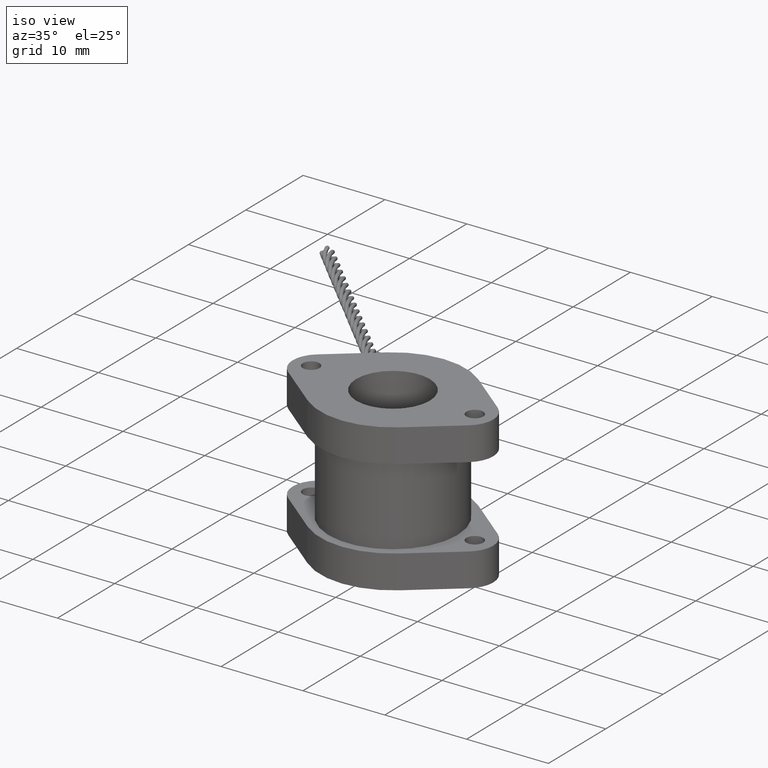
[diagram: clean part render]
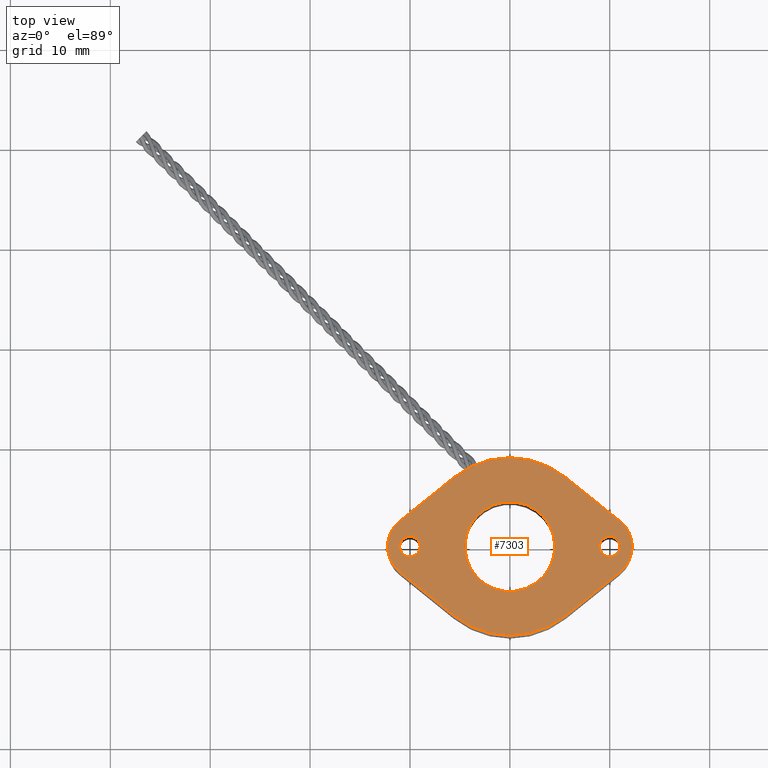
[diagram: tour spotlight — one face highlighted and labeled with its STEP entity id]
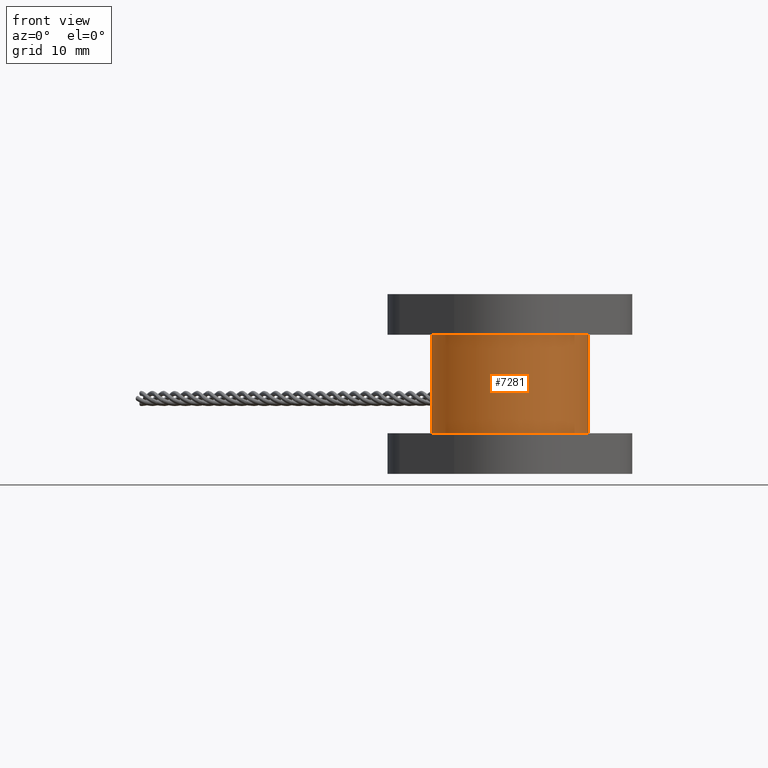
[diagram: tour spotlight — one face highlighted and labeled with its STEP entity id]
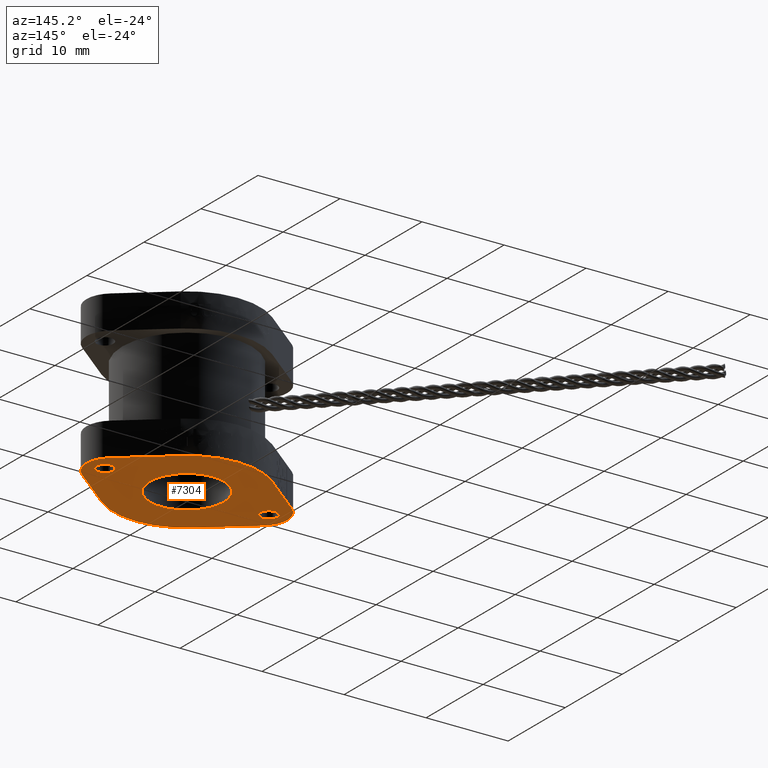
[diagram: tour spotlight — one face highlighted and labeled with its STEP entity id]
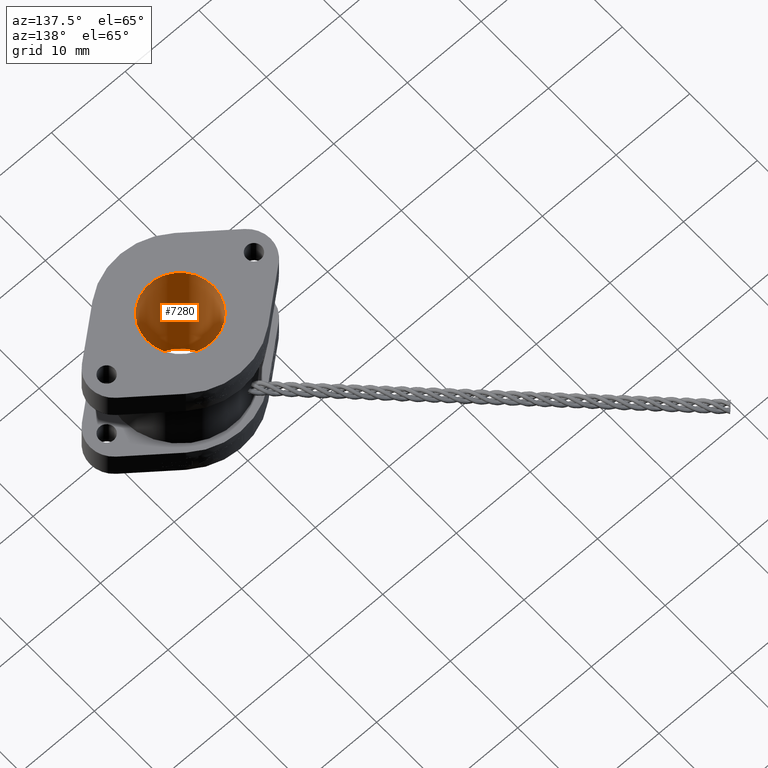
[diagram: tour spotlight — one face highlighted and labeled with its STEP entity id]
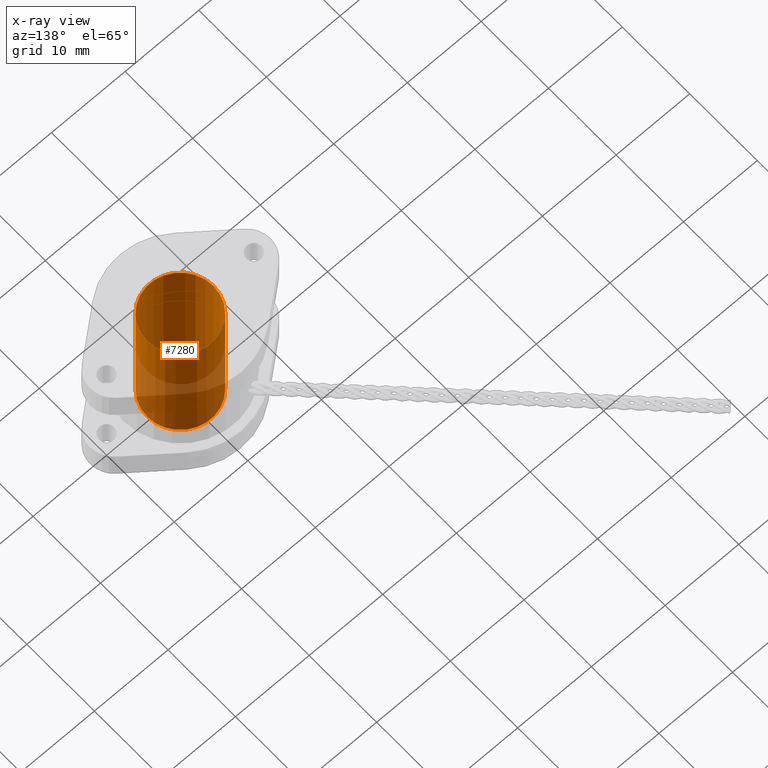
[diagram: x-ray of the same camera — body ghosted, this tour face saturated]
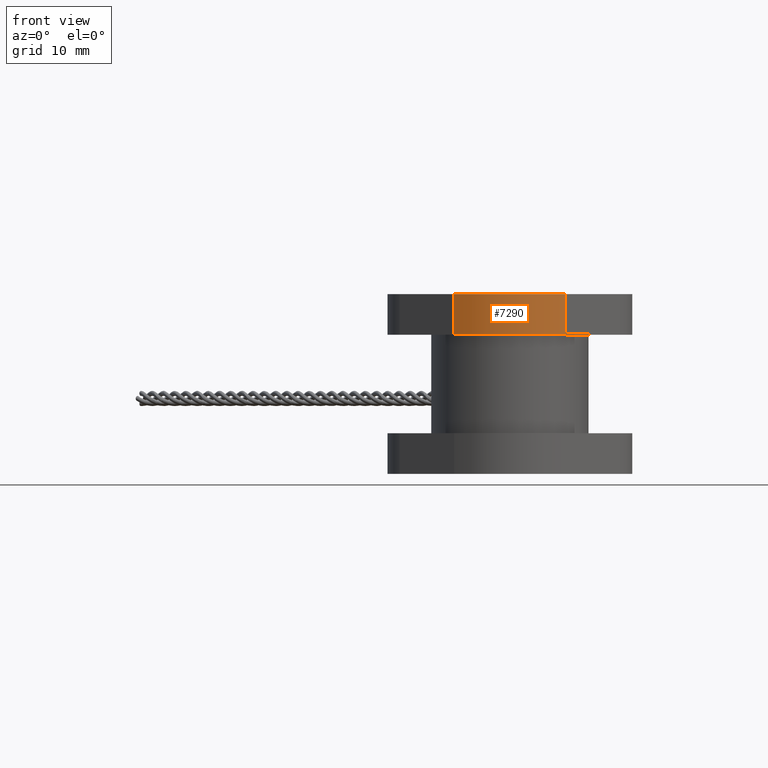
[diagram: tour spotlight — one face highlighted and labeled with its STEP entity id]
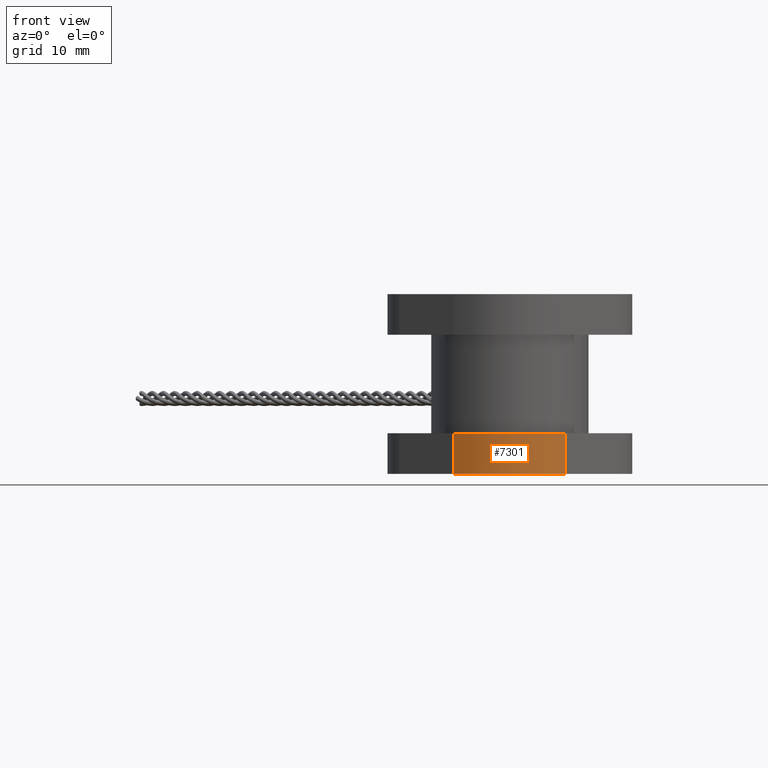
[diagram: tour spotlight — one face highlighted and labeled with its STEP entity id]
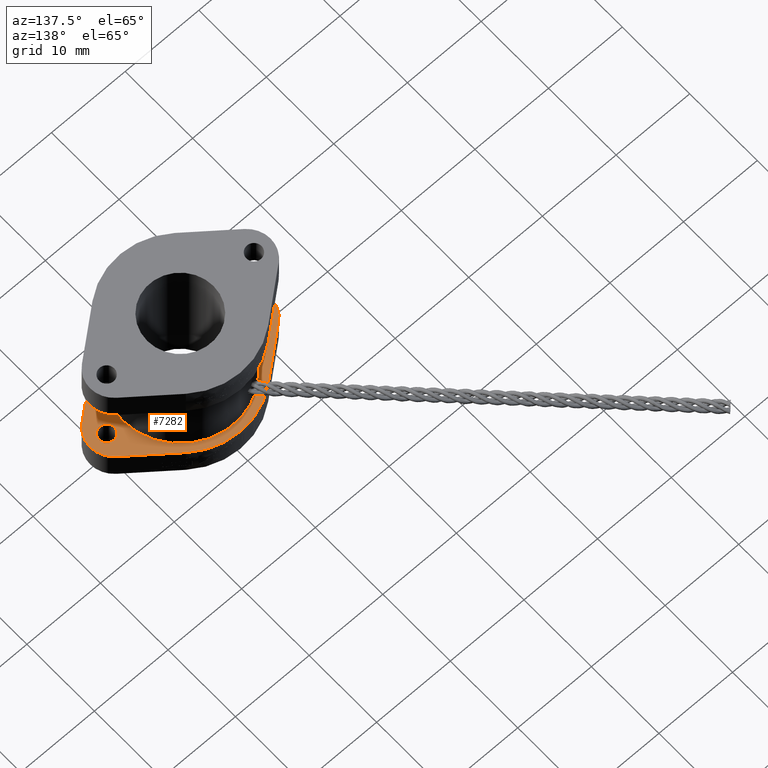
[diagram: tour spotlight — one face highlighted and labeled with its STEP entity id]
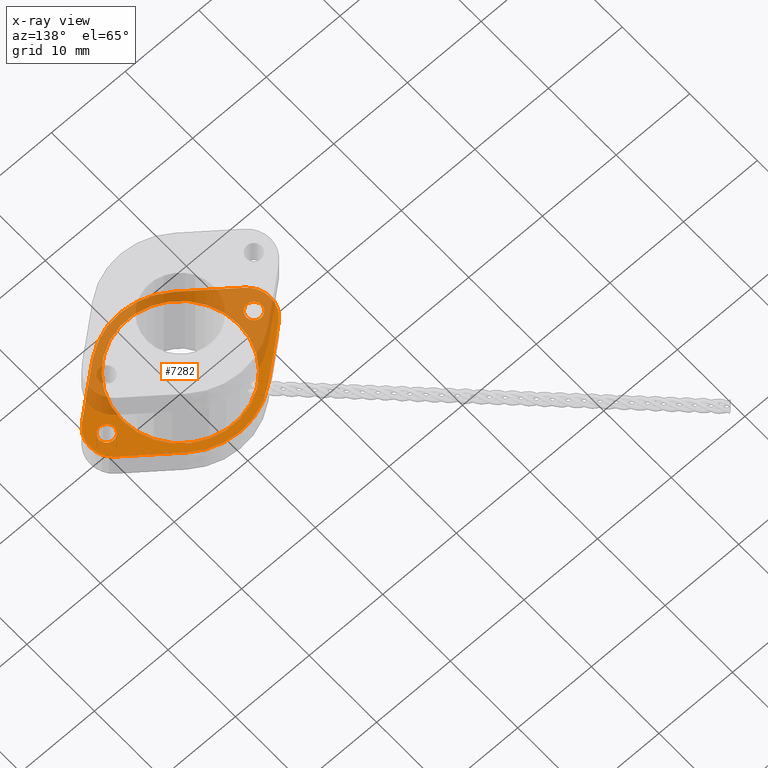
[diagram: x-ray of the same camera — body ghosted, this tour face saturated]
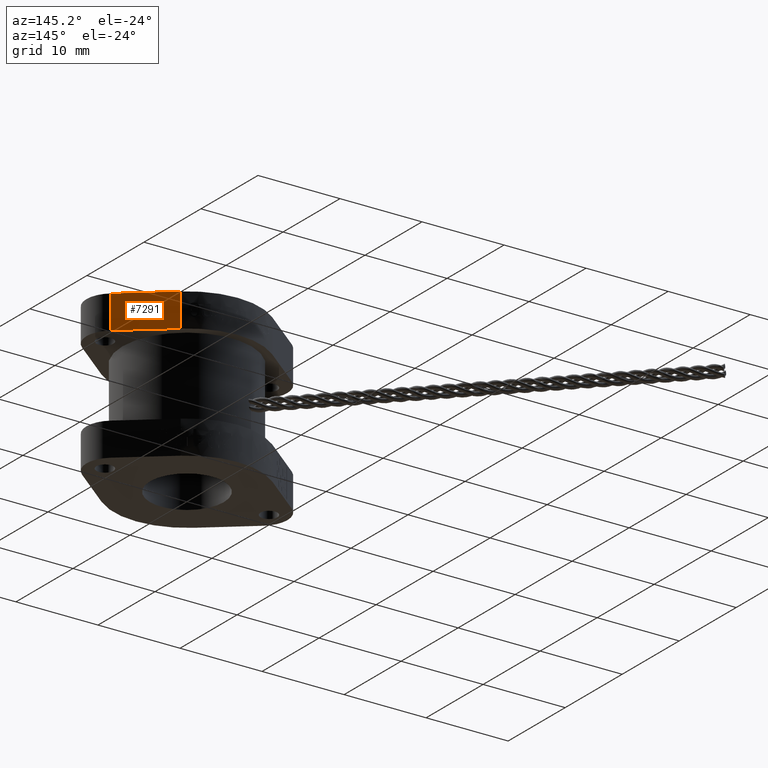
[diagram: tour spotlight — one face highlighted and labeled with its STEP entity id]
A machine part: a face-by-face anatomy tour. The part has 380 B-rep faces; the first image is the clean iso view, then the 8 largest visible faces are spotlighted one at a time (largest first), each with its STEP entity span.

Face 1 — top view, entity #7303. In plain terms, the highlighted planar face has unit normal (0, 0, -1).
Definition (entity closure, byte-faithful):
#72=FACE_BOUND('',#1533,.T.);
#73=FACE_BOUND('',#1534,.T.);
#74=FACE_BOUND('',#1535,.T.);
#738=PLANE('',#7718);
#1114=FACE_OUTER_BOUND('',#1532,.T.);
#1532=EDGE_LOOP('',(#6486,#6487,#6488,#6489,#6490,#6491,#6492,#6493));
#1533=EDGE_LOOP('',(#6494));
#1534=EDGE_LOOP('',(#6495));
#1535=EDGE_LOOP('',(#6496));
#1611=CIRCLE('',#7457,0.350393700787402);
#1672=CIRCLE('',#7672,0.177165354330709);
#1686=CIRCLE('',#7691,0.127952755905512);
#1688=CIRCLE('',#7698,0.350393700787402);
#1689=CIRCLE('',#7703,0.127952755905512);
#1692=CIRCLE('',#7709,0.040354330708661);
#1693=CIRCLE('',#7711,0.040354330708661);
#2231=LINE('',#15818,#2771);
#2235=LINE('',#15830,#2775);
#2237=LINE('',#15839,#2777);
#2242=LINE('',#15848,#2782);
#2771=VECTOR('',#8921,39.3700787401575);
#2775=VECTOR('',#8935,39.3700787401575);
#2777=VECTOR('',#8947,39.3700787401575);
#2782=VECTOR('',#8956,39.3700787401575);
#3022=VERTEX_POINT('',#12225);
#3023=VERTEX_POINT('',#12227);
#3430=VERTEX_POINT('',#15772);
#3449=VERTEX_POINT('',#15816);
#3450=VERTEX_POINT('',#15820);
#3452=VERTEX_POINT('',#15828);
#3453=VERTEX_POINT('',#15834);
#3454=VERTEX_POINT('',#15838);
#3456=VERTEX_POINT('',#15846);
#3459=VERTEX_POINT('',#15858);
#3460=VERTEX_POINT('',#15861);
#3822=EDGE_CURVE('',#3023,#3022,#1611,.T.);
#4431=EDGE_CURVE('',#3430,#3430,#1672,.T.);
#4453=EDGE_CURVE('',#3022,#3449,#2231,.T.);
#4455=EDGE_CURVE('',#3449,#3450,#1686,.T.);
#4459=EDGE_CURVE('',#3450,#3452,#2235,.T.);
#4461=EDGE_CURVE('',#3452,#3453,#1688,.T.);
#4462=EDGE_CURVE('',#3454,#3023,#2237,.T.);
#4467=EDGE_CURVE('',#3453,#3456,#2242,.T.);
#4468=EDGE_CURVE('',#3456,#3454,#1689,.T.);
#4471=EDGE_CURVE('',#3459,#3459,#1692,.T.);
#4472=EDGE_CURVE('',#3460,#3460,#1693,.T.);
#6486=ORIENTED_EDGE('',*,*,#4468,.T.);
#6487=ORIENTED_EDGE('',*,*,#4462,.T.);
#6488=ORIENTED_EDGE('',*,*,#3822,.T.);
#6489=ORIENTED_EDGE('',*,*,#4453,.T.);
#6490=ORIENTED_EDGE('',*,*,#4455,.T.);
#6491=ORIENTED_EDGE('',*,*,#4459,.T.);
#6492=ORIENTED_EDGE('',*,*,#4461,.T.);
#6493=ORIENTED_EDGE('',*,*,#4467,.T.);
#6494=ORIENTED_EDGE('',*,*,#4431,.T.);
#6495=ORIENTED_EDGE('',*,*,#4471,.F.);
#6496=ORIENTED_EDGE('',*,*,#4472,.F.);
#7303=ADVANCED_FACE('',(#1114,#72,#73,#74),#738,.F.);
#7457=AXIS2_PLACEMENT_3D('',#12228,#8083,#8084);
#7672=AXIS2_PLACEMENT_3D('',#15773,#8877,#8878);
#7691=AXIS2_PLACEMENT_3D('',#15822,#8925,#8926);
#7698=AXIS2_PLACEMENT_3D('',#15836,#8943,#8944);
#7703=AXIS2_PLACEMENT_3D('',#15850,#8959,#8960);
#7709=AXIS2_PLACEMENT_3D('',#15859,#8971,#8972);
#7711=AXIS2_PLACEMENT_3D('',#15862,#8975,#8976);
#7718=AXIS2_PLACEMENT_3D('',#15877,#8994,#8995);
#8083=DIRECTION('center_axis',(0.,0.,1.));
#8084=DIRECTION('ref_axis',(1.,0.,0.));
#8877=DIRECTION('center_axis',(0.,0.,-1.));
#8878=DIRECTION('ref_axis',(1.,0.,0.));
#8921=DIRECTION('',(-0.778392614127597,-0.627777777777778,0.));
#8925=DIRECTION('center_axis',(0.,0.,1.));
#8926=DIRECTION('ref_axis',(1.,0.,0.));
#8935=DIRECTION('',(0.778392614127597,-0.627777777777778,0.));
#8943=DIRECTION('center_axis',(0.,0.,1.));
#8944=DIRECTION('ref_axis',(1.,0.,0.));
#8947=DIRECTION('',(-0.778392614127597,0.627777777777778,0.));
#8956=DIRECTION('',(0.778392614127597,0.627777777777779,0.));
#8959=DIRECTION('center_axis',(0.,0.,1.));
#8960=DIRECTION('ref_axis',(-1.,0.,0.));
#8971=DIRECTION('center_axis',(0.,0.,1.));
#8972=DIRECTION('ref_axis',(1.,0.,0.));
#8975=DIRECTION('center_axis',(0.,0.,1.));
#8976=DIRECTION('ref_axis',(1.,0.,0.));
#8994=DIRECTION('center_axis',(0.,0.,-1.));
#8995=DIRECTION('ref_axis',(-1.,0.,0.));
#12225=CARTESIAN_POINT('',(-0.219969378827647,0.272743868729749,0.354330708661417));
#12227=CARTESIAN_POINT('',(0.219969378827647,0.272743868729749,0.354330708661417));
#12228=CARTESIAN_POINT('Origin',(0.,0.,0.354330708661417));
#15772=CARTESIAN_POINT('',(0.177165354330709,0.,0.354330708661417));
#15773=CARTESIAN_POINT('Origin',(0.,0.,0.354330708661417));
#15816=CARTESIAN_POINT('',(-0.434656605424322,0.0995974801541217,0.354330708661417));
#15818=CARTESIAN_POINT('',(-0.434656605424322,0.0995974801541218,0.354330708661417));
#15820=CARTESIAN_POINT('',(-0.434656605424322,-0.0995974801541216,0.354330708661417));
#15822=CARTESIAN_POINT('Origin',(-0.354330708661417,4.90172401428705E-26,
0.354330708661417));
#15828=CARTESIAN_POINT('',(-0.219969378827647,-0.272743868729749,0.354330708661417));
#15830=CARTESIAN_POINT('',(-0.434656605424322,-0.0995974801541216,0.354330708661417));
#15834=CARTESIAN_POINT('',(0.219969378827647,-0.272743868729749,0.354330708661417));
#15836=CARTESIAN_POINT('Origin',(0.,0.,0.354330708661417));
#15838=CARTESIAN_POINT('',(0.434656605424322,0.0995974801541218,0.354330708661417));
#15839=CARTESIAN_POINT('',(0.434656605424322,0.0995974801541218,0.354330708661417));
#15846=CARTESIAN_POINT('',(0.434656605424322,-0.0995974801541214,0.354330708661417));
#15848=CARTESIAN_POINT('',(0.434656605424322,-0.0995974801541214,0.354330708661417));
#15850=CARTESIAN_POINT('Origin',(0.354330708661417,4.90172401428705E-26,
0.354330708661417));
#15858=CARTESIAN_POINT('',(0.434055118110236,0.,0.354330708661417));
#15859=CARTESIAN_POINT('Origin',(0.393700787401575,0.,0.354330708661417));
#15861=CARTESIAN_POINT('',(-0.353346456692914,0.,0.354330708661417));
#15862=CARTESIAN_POINT('Origin',(-0.393700787401575,0.,0.354330708661417));
#15877=CARTESIAN_POINT('Origin',(0.354330708661417,4.90172401428705E-26,
0.354330708661417));

Face 2 — front view, entity #7281. In plain terms, the highlighted cylindrical surface (bore or boss wall) has radius 7.874 mm, axis along (0, 0, 1).
Definition (entity closure, byte-faithful):
#60=FACE_BOUND('',#1499,.T.);
#1092=FACE_OUTER_BOUND('',#1498,.T.);
#1498=EDGE_LOOP('',(#6370));
#1499=EDGE_LOOP('',(#6371));
#1674=CIRCLE('',#7675,0.31);
#1675=CIRCLE('',#7676,0.31);
#3432=VERTEX_POINT('',#15777);
#3433=VERTEX_POINT('',#15779);
#4433=EDGE_CURVE('',#3432,#3432,#1674,.T.);
#4434=EDGE_CURVE('',#3433,#3433,#1675,.T.);
#6370=ORIENTED_EDGE('',*,*,#4433,.F.);
#6371=ORIENTED_EDGE('',*,*,#4434,.T.);
#6557=CYLINDRICAL_SURFACE('',#7674,0.31);
#7281=ADVANCED_FACE('',(#1092,#60),#6557,.T.);
#7674=AXIS2_PLACEMENT_3D('',#15776,#8881,#8882);
#7675=AXIS2_PLACEMENT_3D('',#15778,#8883,#8884);
#7676=AXIS2_PLACEMENT_3D('',#15780,#8885,#8886);
#8881=DIRECTION('center_axis',(0.,0.,1.));
#8882=DIRECTION('ref_axis',(-1.,0.,0.));
#8883=DIRECTION('center_axis',(0.,0.,1.));
#8884=DIRECTION('ref_axis',(1.,0.,0.));
#8885=DIRECTION('center_axis',(0.,0.,1.));
#8886=DIRECTION('ref_axis',(1.,0.,0.));
#15776=CARTESIAN_POINT('Origin',(0.,0.,0.));
#15777=CARTESIAN_POINT('',(-0.31,0.,0.194330708661417));
#15778=CARTESIAN_POINT('Origin',(0.,0.,0.194330708661417));
#15779=CARTESIAN_POINT('',(-0.31,0.,-0.194330708661417));
#15780=CARTESIAN_POINT('Origin',(0.,0.,-0.194330708661417));

Face 3 — auxiliary view, entity #7304. In plain terms, the highlighted planar face has unit normal (0, 0, -1).
Definition (entity closure, byte-faithful):
#75=FACE_BOUND('',#1537,.T.);
#76=FACE_BOUND('',#1538,.T.);
#77=FACE_BOUND('',#1539,.T.);
#739=PLANE('',#7719);
#1115=FACE_OUTER_BOUND('',#1536,.T.);
#1536=EDGE_LOOP('',(#6497,#6498,#6499,#6500,#6501,#6502,#6503,#6504));
#1537=EDGE_LOOP('',(#6505));
#1538=EDGE_LOOP('',(#6506));
#1539=EDGE_LOOP('',(#6507));
#1671=CIRCLE('',#7666,0.350393700787402);
#1673=CIRCLE('',#7673,0.177165354330709);
#1687=CIRCLE('',#7693,0.127952755905512);
#1690=CIRCLE('',#7705,0.040354330708661);
#1691=CIRCLE('',#7707,0.040354330708661);
#1694=CIRCLE('',#7713,0.127952755905512);
#1695=CIRCLE('',#7716,0.350393700787402);
#2002=LINE('',#12563,#2542);
#2240=LINE('',#15844,#2780);
#2244=LINE('',#15869,#2784);
#2247=LINE('',#15876,#2787);
#2542=VECTOR('',#8332,39.3700787401575);
#2780=VECTOR('',#8952,39.3700787401575);
#2784=VECTOR('',#8984,39.3700787401575);
#2787=VECTOR('',#8993,39.3700787401575);
#3125=VERTEX_POINT('',#12560);
#3126=VERTEX_POINT('',#12562);
#3429=VERTEX_POINT('',#15763);
#3431=VERTEX_POINT('',#15774);
#3451=VERTEX_POINT('',#15824);
#3455=VERTEX_POINT('',#15842);
#3457=VERTEX_POINT('',#15852);
#3458=VERTEX_POINT('',#15855);
#3461=VERTEX_POINT('',#15864);
#3462=VERTEX_POINT('',#15868);
#3463=VERTEX_POINT('',#15872);
#3971=EDGE_CURVE('',#3125,#3126,#2002,.T.);
#4429=EDGE_CURVE('',#3429,#3125,#1671,.T.);
#4432=EDGE_CURVE('',#3431,#3431,#1673,.T.);
#4456=EDGE_CURVE('',#3126,#3451,#1687,.T.);
#4465=EDGE_CURVE('',#3455,#3429,#2240,.T.);
#4469=EDGE_CURVE('',#3457,#3457,#1690,.T.);
#4470=EDGE_CURVE('',#3458,#3458,#1691,.T.);
#4474=EDGE_CURVE('',#3461,#3455,#1694,.T.);
#4475=EDGE_CURVE('',#3451,#3462,#2244,.T.);
#4477=EDGE_CURVE('',#3462,#3463,#1695,.T.);
#4479=EDGE_CURVE('',#3463,#3461,#2247,.T.);
#6497=ORIENTED_EDGE('',*,*,#4474,.F.);
#6498=ORIENTED_EDGE('',*,*,#4479,.F.);
#6499=ORIENTED_EDGE('',*,*,#4477,.F.);
#6500=ORIENTED_EDGE('',*,*,#4475,.F.);
#6501=ORIENTED_EDGE('',*,*,#4456,.F.);
#6502=ORIENTED_EDGE('',*,*,#3971,.F.);
#6503=ORIENTED_EDGE('',*,*,#4429,.F.);
#6504=ORIENTED_EDGE('',*,*,#4465,.F.);
#6505=ORIENTED_EDGE('',*,*,#4432,.T.);
#6506=ORIENTED_EDGE('',*,*,#4469,.F.);
#6507=ORIENTED_EDGE('',*,*,#4470,.F.);
#7304=ADVANCED_FACE('',(#1115,#75,#76,#77),#739,.T.);
#7666=AXIS2_PLACEMENT_3D('',#15765,#8864,#8865);
#7673=AXIS2_PLACEMENT_3D('',#15775,#8879,#8880);
#7693=AXIS2_PLACEMENT_3D('',#15825,#8929,#8930);
#7705=AXIS2_PLACEMENT_3D('',#15853,#8963,#8964);
#7707=AXIS2_PLACEMENT_3D('',#15856,#8967,#8968);
#7713=AXIS2_PLACEMENT_3D('',#15866,#8980,#8981);
#7716=AXIS2_PLACEMENT_3D('',#15873,#8988,#8989);
#7719=AXIS2_PLACEMENT_3D('',#15878,#8996,#8997);
#8332=DIRECTION('',(-0.778392614127597,-0.627777777777778,0.));
#8864=DIRECTION('center_axis',(0.,0.,1.));
#8865=DIRECTION('ref_axis',(1.,0.,0.));
#8879=DIRECTION('center_axis',(0.,0.,1.));
#8880=DIRECTION('ref_axis',(1.,0.,0.));
#8929=DIRECTION('center_axis',(0.,0.,1.));
#8930=DIRECTION('ref_axis',(1.,0.,0.));
#8952=DIRECTION('',(-0.778392614127597,0.627777777777778,0.));
#8963=DIRECTION('center_axis',(0.,0.,-1.));
#8964=DIRECTION('ref_axis',(-1.,0.,0.));
#8967=DIRECTION('center_axis',(0.,0.,-1.));
#8968=DIRECTION('ref_axis',(-1.,0.,0.));
#8980=DIRECTION('center_axis',(0.,0.,1.));
#8981=DIRECTION('ref_axis',(-1.,0.,0.));
#8984=DIRECTION('',(0.778392614127597,-0.627777777777778,0.));
#8988=DIRECTION('center_axis',(0.,0.,1.));
#8989=DIRECTION('ref_axis',(1.,0.,0.));
#8993=DIRECTION('',(0.778392614127597,0.627777777777779,0.));
#8996=DIRECTION('center_axis',(0.,0.,-1.));
#8997=DIRECTION('ref_axis',(-1.,0.,0.));
#12560=CARTESIAN_POINT('',(-0.219969378827647,0.272743868729749,-0.354330708661417));
#12562=CARTESIAN_POINT('',(-0.434656605424322,0.0995974801541217,-0.354330708661417));
#12563=CARTESIAN_POINT('',(-0.434656605424322,0.0995974801541218,-0.354330708661417));
#15763=CARTESIAN_POINT('',(0.219969378827647,0.272743868729749,-0.354330708661417));
#15765=CARTESIAN_POINT('Origin',(0.,0.,-0.354330708661417));
#15774=CARTESIAN_POINT('',(-0.177165354330709,-2.16964984100909E-17,-0.354330708661417));
#15775=CARTESIAN_POINT('Origin',(0.,0.,-0.354330708661417));
#15824=CARTESIAN_POINT('',(-0.434656605424322,-0.0995974801541216,-0.354330708661417));
#15825=CARTESIAN_POINT('Origin',(-0.354330708661417,4.90172401428705E-26,
-0.354330708661417));
#15842=CARTESIAN_POINT('',(0.434656605424322,0.0995974801541218,-0.354330708661417));
#15844=CARTESIAN_POINT('',(0.434656605424322,0.0995974801541218,-0.354330708661417));
#15852=CARTESIAN_POINT('',(0.353346456692914,0.,-0.354330708661417));
#15853=CARTESIAN_POINT('Origin',(0.393700787401575,0.,-0.354330708661417));
#15855=CARTESIAN_POINT('',(-0.434055118110236,0.,-0.354330708661417));
#15856=CARTESIAN_POINT('Origin',(-0.393700787401575,0.,-0.354330708661417));
#15864=CARTESIAN_POINT('',(0.434656605424322,-0.0995974801541214,-0.354330708661417));
#15866=CARTESIAN_POINT('Origin',(0.354330708661417,4.90172401428705E-26,
-0.354330708661417));
#15868=CARTESIAN_POINT('',(-0.219969378827647,-0.272743868729749,-0.354330708661417));
#15869=CARTESIAN_POINT('',(-0.434656605424322,-0.0995974801541216,-0.354330708661417));
#15872=CARTESIAN_POINT('',(0.219969378827647,-0.272743868729749,-0.354330708661417));
#15873=CARTESIAN_POINT('Origin',(0.,0.,-0.354330708661417));
#15876=CARTESIAN_POINT('',(0.434656605424322,-0.0995974801541214,-0.354330708661417));
#15878=CARTESIAN_POINT('Origin',(0.354330708661417,4.90172401428705E-26,
-0.354330708661417));

Face 4 — auxiliary view, entity #7280. An x-ray twin of the same camera follows (body ghosted, this face saturated) — the face is partly hidden behind the body. In plain terms, the highlighted cylindrical surface (bore or boss wall) has radius 4.5 mm, axis along (0, 0, 1).
Definition (entity closure, byte-faithful):
#59=FACE_BOUND('',#1497,.T.);
#1091=FACE_OUTER_BOUND('',#1496,.T.);
#1496=EDGE_LOOP('',(#6368));
#1497=EDGE_LOOP('',(#6369));
#1672=CIRCLE('',#7672,0.177165354330709);
#1673=CIRCLE('',#7673,0.177165354330709);
#3430=VERTEX_POINT('',#15772);
#3431=VERTEX_POINT('',#15774);
#4431=EDGE_CURVE('',#3430,#3430,#1672,.T.);
#4432=EDGE_CURVE('',#3431,#3431,#1673,.T.);
#6368=ORIENTED_EDGE('',*,*,#4431,.F.);
#6369=ORIENTED_EDGE('',*,*,#4432,.F.);
#6556=CYLINDRICAL_SURFACE('',#7671,0.177165354330709);
#7280=ADVANCED_FACE('',(#1091,#59),#6556,.F.);
#7671=AXIS2_PLACEMENT_3D('',#15771,#8875,#8876);
#7672=AXIS2_PLACEMENT_3D('',#15773,#8877,#8878);
#7673=AXIS2_PLACEMENT_3D('',#15775,#8879,#8880);
#8875=DIRECTION('center_axis',(0.,0.,1.));
#8876=DIRECTION('ref_axis',(1.,0.,0.));
#8877=DIRECTION('center_axis',(0.,0.,-1.));
#8878=DIRECTION('ref_axis',(1.,0.,0.));
#8879=DIRECTION('center_axis',(0.,0.,1.));
#8880=DIRECTION('ref_axis',(1.,0.,0.));
#15771=CARTESIAN_POINT('Origin',(0.,0.,-1.03264201903971));
#15772=CARTESIAN_POINT('',(0.177165354330709,0.,0.354330708661417));
#15773=CARTESIAN_POINT('Origin',(0.,0.,0.354330708661417));
#15774=CARTESIAN_POINT('',(-0.177165354330709,-2.16964984100909E-17,-0.354330708661417));
#15775=CARTESIAN_POINT('Origin',(0.,0.,-0.354330708661417));

Face 5 — front view, entity #7290. In plain terms, the highlighted cylindrical surface (partial cylindrical patch) has radius 8.9 mm, axis along (0, 0, -1).
Definition (entity closure, byte-faithful):
#1101=FACE_OUTER_BOUND('',#1514,.T.);
#1514=EDGE_LOOP('',(#6419,#6420,#6421,#6422));
#1682=CIRCLE('',#7685,0.350393700787402);
#1688=CIRCLE('',#7698,0.350393700787402);
#2234=LINE('',#15829,#2774);
#2236=LINE('',#15835,#2776);
#2774=VECTOR('',#8934,39.3700787401575);
#2776=VECTOR('',#8942,39.3700787401575);
#3443=VERTEX_POINT('',#15801);
#3444=VERTEX_POINT('',#15803);
#3452=VERTEX_POINT('',#15828);
#3453=VERTEX_POINT('',#15834);
#4445=EDGE_CURVE('',#3444,#3443,#1682,.T.);
#4458=EDGE_CURVE('',#3452,#3444,#2234,.T.);
#4460=EDGE_CURVE('',#3453,#3443,#2236,.T.);
#4461=EDGE_CURVE('',#3452,#3453,#1688,.T.);
#6419=ORIENTED_EDGE('',*,*,#4445,.T.);
#6420=ORIENTED_EDGE('',*,*,#4460,.F.);
#6421=ORIENTED_EDGE('',*,*,#4461,.F.);
#6422=ORIENTED_EDGE('',*,*,#4458,.T.);
#6562=CYLINDRICAL_SURFACE('',#7697,0.350393700787402);
#7290=ADVANCED_FACE('',(#1101),#6562,.T.);
#7685=AXIS2_PLACEMENT_3D('',#15804,#8907,#8908);
#7697=AXIS2_PLACEMENT_3D('',#15833,#8940,#8941);
#7698=AXIS2_PLACEMENT_3D('',#15836,#8943,#8944);
#8907=DIRECTION('center_axis',(0.,0.,1.));
#8908=DIRECTION('ref_axis',(-1.,0.,0.));
#8934=DIRECTION('',(0.,0.,-1.));
#8940=DIRECTION('center_axis',(0.,0.,-1.));
#8941=DIRECTION('ref_axis',(-1.,0.,0.));
#8942=DIRECTION('',(0.,0.,-1.));
#8943=DIRECTION('center_axis',(0.,0.,1.));
#8944=DIRECTION('ref_axis',(1.,0.,0.));
#15801=CARTESIAN_POINT('',(0.219969378827647,-0.272743868729749,0.194330708661417));
#15803=CARTESIAN_POINT('',(-0.219969378827647,-0.272743868729749,0.194330708661417));
#15804=CARTESIAN_POINT('Origin',(0.,0.,0.194330708661417));
#15828=CARTESIAN_POINT('',(-0.219969378827647,-0.272743868729749,0.354330708661417));
#15829=CARTESIAN_POINT('',(-0.219969378827647,-0.272743868729749,0.354330708661417));
#15833=CARTESIAN_POINT('Origin',(0.,0.,0.354330708661417));
#15834=CARTESIAN_POINT('',(0.219969378827647,-0.272743868729749,0.354330708661417));
#15835=CARTESIAN_POINT('',(0.219969378827647,-0.272743868729749,0.354330708661417));
#15836=CARTESIAN_POINT('Origin',(0.,0.,0.354330708661417));

Face 6 — front view, entity #7301. In plain terms, the highlighted cylindrical surface (partial cylindrical patch) has radius 8.9 mm, axis along (0, 0, -1).
Definition (entity closure, byte-faithful):
#1112=FACE_OUTER_BOUND('',#1530,.T.);
#1530=EDGE_LOOP('',(#6478,#6479,#6480,#6481));
#1678=CIRCLE('',#7680,0.350393700787402);
#1695=CIRCLE('',#7716,0.350393700787402);
#2245=LINE('',#15870,#2785);
#2246=LINE('',#15874,#2786);
#2785=VECTOR('',#8985,39.3700787401575);
#2786=VECTOR('',#8990,39.3700787401575);
#3437=VERTEX_POINT('',#15788);
#3438=VERTEX_POINT('',#15790);
#3462=VERTEX_POINT('',#15868);
#3463=VERTEX_POINT('',#15872);
#4439=EDGE_CURVE('',#3438,#3437,#1678,.T.);
#4476=EDGE_CURVE('',#3437,#3462,#2245,.T.);
#4477=EDGE_CURVE('',#3462,#3463,#1695,.T.);
#4478=EDGE_CURVE('',#3438,#3463,#2246,.T.);
#6478=ORIENTED_EDGE('',*,*,#4439,.T.);
#6479=ORIENTED_EDGE('',*,*,#4476,.T.);
#6480=ORIENTED_EDGE('',*,*,#4477,.T.);
#6481=ORIENTED_EDGE('',*,*,#4478,.F.);
#6569=CYLINDRICAL_SURFACE('',#7715,0.350393700787402);
#7301=ADVANCED_FACE('',(#1112),#6569,.T.);
#7680=AXIS2_PLACEMENT_3D('',#15791,#8895,#8896);
#7715=AXIS2_PLACEMENT_3D('',#15871,#8986,#8987);
#7716=AXIS2_PLACEMENT_3D('',#15873,#8988,#8989);
#8895=DIRECTION('center_axis',(0.,0.,-1.));
#8896=DIRECTION('ref_axis',(-1.,0.,0.));
#8985=DIRECTION('',(0.,0.,-1.));
#8986=DIRECTION('center_axis',(0.,0.,-1.));
#8987=DIRECTION('ref_axis',(-1.,0.,0.));
#8988=DIRECTION('center_axis',(0.,0.,1.));
#8989=DIRECTION('ref_axis',(1.,0.,0.));
#8990=DIRECTION('',(0.,0.,-1.));
#15788=CARTESIAN_POINT('',(-0.219969378827647,-0.272743868729749,-0.194330708661417));
#15790=CARTESIAN_POINT('',(0.219969378827647,-0.272743868729749,-0.194330708661417));
#15791=CARTESIAN_POINT('Origin',(0.,0.,-0.194330708661417));
#15868=CARTESIAN_POINT('',(-0.219969378827647,-0.272743868729749,-0.354330708661417));
#15870=CARTESIAN_POINT('',(-0.219969378827647,-0.272743868729749,0.354330708661417));
#15871=CARTESIAN_POINT('Origin',(0.,0.,0.354330708661417));
#15872=CARTESIAN_POINT('',(0.219969378827647,-0.272743868729749,-0.354330708661417));
#15873=CARTESIAN_POINT('Origin',(0.,0.,-0.354330708661417));
#15874=CARTESIAN_POINT('',(0.219969378827647,-0.272743868729749,0.354330708661417));

Face 7 — auxiliary view, entity #7282. An x-ray twin of the same camera follows (body ghosted, this face saturated) — the face is partly hidden behind the body. In plain terms, the highlighted planar face has unit normal (0, 0, -1).
Definition (entity closure, byte-faithful):
#61=FACE_BOUND('',#1501,.T.);
#62=FACE_BOUND('',#1502,.T.);
#63=FACE_BOUND('',#1503,.T.);
#729=PLANE('',#7677);
#1093=FACE_OUTER_BOUND('',#1500,.T.);
#1500=EDGE_LOOP('',(#6372,#6373,#6374,#6375,#6376,#6377,#6378,#6379));
#1501=EDGE_LOOP('',(#6380));
#1502=EDGE_LOOP('',(#6381));
#1503=EDGE_LOOP('',(#6382));
#1670=CIRCLE('',#7665,0.350393700787402);
#1675=CIRCLE('',#7676,0.31);
#1676=CIRCLE('',#7678,0.127952755905512);
#1677=CIRCLE('',#7679,0.127952755905512);
#1678=CIRCLE('',#7680,0.350393700787402);
#1679=CIRCLE('',#7681,0.0403543307086612);
#1680=CIRCLE('',#7682,0.0403543307086612);
#2004=LINE('',#12567,#2544);
#2223=LINE('',#15785,#2763);
#2224=LINE('',#15789,#2764);
#2225=LINE('',#15792,#2765);
#2544=VECTOR('',#8334,0.393700787401575);
#2763=VECTOR('',#8891,0.393700787401575);
#2764=VECTOR('',#8894,0.393700787401575);
#2765=VECTOR('',#8897,0.393700787401575);
#3127=VERTEX_POINT('',#12564);
#3128=VERTEX_POINT('',#12566);
#3428=VERTEX_POINT('',#15759);
#3433=VERTEX_POINT('',#15779);
#3434=VERTEX_POINT('',#15782);
#3435=VERTEX_POINT('',#15783);
#3436=VERTEX_POINT('',#15786);
#3437=VERTEX_POINT('',#15788);
#3438=VERTEX_POINT('',#15790);
#3439=VERTEX_POINT('',#15793);
#3440=VERTEX_POINT('',#15795);
#3973=EDGE_CURVE('',#3127,#3128,#2004,.T.);
#4425=EDGE_CURVE('',#3128,#3428,#1670,.T.);
#4434=EDGE_CURVE('',#3433,#3433,#1675,.T.);
#4435=EDGE_CURVE('',#3434,#3435,#1676,.T.);
#4436=EDGE_CURVE('',#3428,#3434,#2223,.T.);
#4437=EDGE_CURVE('',#3436,#3127,#1677,.T.);
#4438=EDGE_CURVE('',#3437,#3436,#2224,.T.);
#4439=EDGE_CURVE('',#3438,#3437,#1678,.T.);
#4440=EDGE_CURVE('',#3435,#3438,#2225,.T.);
#4441=EDGE_CURVE('',#3439,#3439,#1679,.T.);
#4442=EDGE_CURVE('',#3440,#3440,#1680,.T.);
#6372=ORIENTED_EDGE('',*,*,#4435,.F.);
#6373=ORIENTED_EDGE('',*,*,#4436,.F.);
#6374=ORIENTED_EDGE('',*,*,#4425,.F.);
#6375=ORIENTED_EDGE('',*,*,#3973,.F.);
#6376=ORIENTED_EDGE('',*,*,#4437,.F.);
#6377=ORIENTED_EDGE('',*,*,#4438,.F.);
#6378=ORIENTED_EDGE('',*,*,#4439,.F.);
#6379=ORIENTED_EDGE('',*,*,#4440,.F.);
#6380=ORIENTED_EDGE('',*,*,#4441,.F.);
#6381=ORIENTED_EDGE('',*,*,#4442,.F.);
#6382=ORIENTED_EDGE('',*,*,#4434,.F.);
#7282=ADVANCED_FACE('',(#1093,#61,#62,#63),#729,.F.);
#7665=AXIS2_PLACEMENT_3D('',#15760,#8859,#8860);
#7676=AXIS2_PLACEMENT_3D('',#15780,#8885,#8886);
#7677=AXIS2_PLACEMENT_3D('',#15781,#8887,#8888);
#7678=AXIS2_PLACEMENT_3D('',#15784,#8889,#8890);
#7679=AXIS2_PLACEMENT_3D('',#15787,#8892,#8893);
#7680=AXIS2_PLACEMENT_3D('',#15791,#8895,#8896);
#7681=AXIS2_PLACEMENT_3D('',#15794,#8898,#8899);
#7682=AXIS2_PLACEMENT_3D('',#15796,#8900,#8901);
#8334=DIRECTION('',(0.778392614127597,0.627777777777778,0.));
#8859=DIRECTION('center_axis',(0.,0.,-1.));
#8860=DIRECTION('ref_axis',(-1.,0.,0.));
#8885=DIRECTION('center_axis',(0.,0.,1.));
#8886=DIRECTION('ref_axis',(1.,0.,0.));
#8887=DIRECTION('center_axis',(0.,0.,-1.));
#8888=DIRECTION('ref_axis',(-1.,0.,0.));
#8889=DIRECTION('center_axis',(0.,0.,-1.));
#8890=DIRECTION('ref_axis',(-1.,0.,0.));
#8891=DIRECTION('',(0.778392614127597,-0.627777777777778,0.));
#8892=DIRECTION('center_axis',(0.,0.,-1.));
#8893=DIRECTION('ref_axis',(-1.,0.,0.));
#8894=DIRECTION('',(-0.778392614127597,0.627777777777778,0.));
#8895=DIRECTION('center_axis',(0.,0.,-1.));
#8896=DIRECTION('ref_axis',(-1.,0.,0.));
#8897=DIRECTION('',(-0.778392614127597,-0.627777777777779,0.));
#8898=DIRECTION('center_axis',(0.,0.,1.));
#8899=DIRECTION('ref_axis',(-1.,0.,0.));
#8900=DIRECTION('center_axis',(0.,0.,1.));
#8901=DIRECTION('ref_axis',(-1.,0.,0.));
#12564=CARTESIAN_POINT('',(-0.434656605424322,0.0995974801541217,-0.194330708661417));
#12566=CARTESIAN_POINT('',(-0.219969378827647,0.272743868729749,-0.194330708661417));
#12567=CARTESIAN_POINT('',(-0.508836744798595,0.0397708037360525,-0.194330708661417));
#15759=CARTESIAN_POINT('',(0.219969378827647,0.272743868729749,-0.194330708661417));
#15760=CARTESIAN_POINT('Origin',(0.,0.,-0.194330708661417));
#15779=CARTESIAN_POINT('',(-0.31,0.,-0.194330708661417));
#15780=CARTESIAN_POINT('Origin',(0.,0.,-0.194330708661417));
#15781=CARTESIAN_POINT('Origin',(-0.599192052019009,0.,-0.194330708661417));
#15782=CARTESIAN_POINT('',(0.434656605424322,0.0995974801541218,-0.194330708661417));
#15783=CARTESIAN_POINT('',(0.434656605424322,-0.0995974801541214,-0.194330708661417));
#15784=CARTESIAN_POINT('Origin',(0.354330708661417,4.90172401428705E-26,
-0.194330708661417));
#15785=CARTESIAN_POINT('',(0.145789239453374,0.332570545147818,-0.194330708661417));
#15786=CARTESIAN_POINT('',(-0.434656605424322,-0.0995974801541216,-0.194330708661417));
#15787=CARTESIAN_POINT('Origin',(-0.354330708661417,4.90172401428705E-26,
-0.194330708661417));
#15788=CARTESIAN_POINT('',(-0.219969378827647,-0.272743868729749,-0.194330708661417));
#15789=CARTESIAN_POINT('',(-0.508836744798595,-0.0397708037360523,-0.194330708661417));
#15790=CARTESIAN_POINT('',(0.219969378827647,-0.272743868729749,-0.194330708661417));
#15791=CARTESIAN_POINT('Origin',(0.,0.,-0.194330708661417));
#15792=CARTESIAN_POINT('',(0.145789239453374,-0.332570545147818,-0.194330708661417));
#15793=CARTESIAN_POINT('',(0.434055118110236,4.94198019340957E-18,-0.194330708661417));
#15794=CARTESIAN_POINT('Origin',(0.393700787401575,0.,-0.194330708661417));
#15795=CARTESIAN_POINT('',(-0.353346456692914,4.94198019340957E-18,-0.194330708661417));
#15796=CARTESIAN_POINT('Origin',(-0.393700787401575,0.,-0.194330708661417));

Face 8 — auxiliary view, entity #7291. In plain terms, the highlighted planar face has unit normal (-0.6278, -0.7784, 0).
Definition (entity closure, byte-faithful):
#733=PLANE('',#7699);
#1102=FACE_OUTER_BOUND('',#1515,.T.);
#1515=EDGE_LOOP('',(#6423,#6424,#6425,#6426));
#1859=LINE('',#12229,#2399);
#2229=LINE('',#15810,#2769);
#2237=LINE('',#15839,#2777);
#2238=LINE('',#15840,#2778);
#2399=VECTOR('',#8085,39.3700787401575);
#2769=VECTOR('',#8913,0.393700787401575);
#2777=VECTOR('',#8947,39.3700787401575);
#2778=VECTOR('',#8948,39.3700787401575);
#3020=VERTEX_POINT('',#12222);
#3023=VERTEX_POINT('',#12227);
#3442=VERTEX_POINT('',#15799);
#3454=VERTEX_POINT('',#15838);
#3823=EDGE_CURVE('',#3023,#3020,#1859,.T.);
#4449=EDGE_CURVE('',#3442,#3020,#2229,.T.);
#4462=EDGE_CURVE('',#3454,#3023,#2237,.T.);
#4463=EDGE_CURVE('',#3454,#3442,#2238,.T.);
#6423=ORIENTED_EDGE('',*,*,#4449,.T.);
#6424=ORIENTED_EDGE('',*,*,#3823,.F.);
#6425=ORIENTED_EDGE('',*,*,#4462,.F.);
#6426=ORIENTED_EDGE('',*,*,#4463,.T.);
#7291=ADVANCED_FACE('',(#1102),#733,.F.);
#7699=AXIS2_PLACEMENT_3D('',#15837,#8945,#8946);
#8085=DIRECTION('',(0.,0.,-1.));
#8913=DIRECTION('',(-0.778392614127597,0.627777777777778,0.));
#8945=DIRECTION('center_axis',(-0.627777777777778,-0.778392614127597,0.));
#8946=DIRECTION('ref_axis',(0.778392614127597,-0.627777777777778,0.));
#8947=DIRECTION('',(-0.778392614127597,0.627777777777778,0.));
#8948=DIRECTION('',(0.,0.,-1.));
#12222=CARTESIAN_POINT('',(0.219969378827647,0.272743868729749,0.194330708661417));
#12227=CARTESIAN_POINT('',(0.219969378827647,0.272743868729749,0.354330708661417));
#12229=CARTESIAN_POINT('',(0.219969378827647,0.272743868729749,0.354330708661417));
#15799=CARTESIAN_POINT('',(0.434656605424322,0.0995974801541218,0.194330708661417));
#15810=CARTESIAN_POINT('',(0.233399257558083,0.261912600199962,0.194330708661417));
#15837=CARTESIAN_POINT('Origin',(0.434656605424322,0.0995974801541218,0.354330708661417));
#15838=CARTESIAN_POINT('',(0.434656605424322,0.0995974801541218,0.354330708661417));
#15839=CARTESIAN_POINT('',(0.434656605424322,0.0995974801541218,0.354330708661417));
#15840=CARTESIAN_POINT('',(0.434656605424322,0.0995974801541218,0.354330708661417));